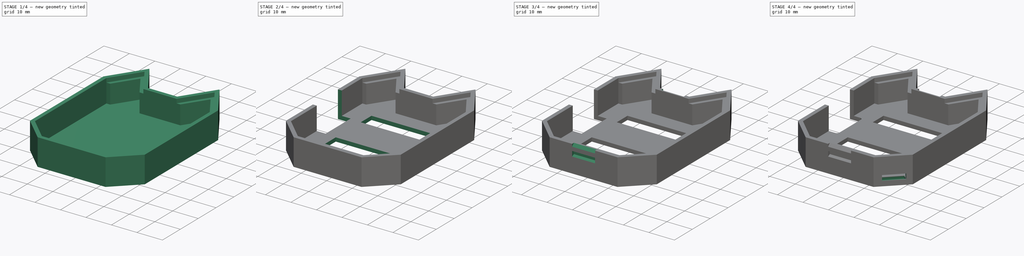
[diagram: build sequence overview — one tinted view per stage of 4, left to right]
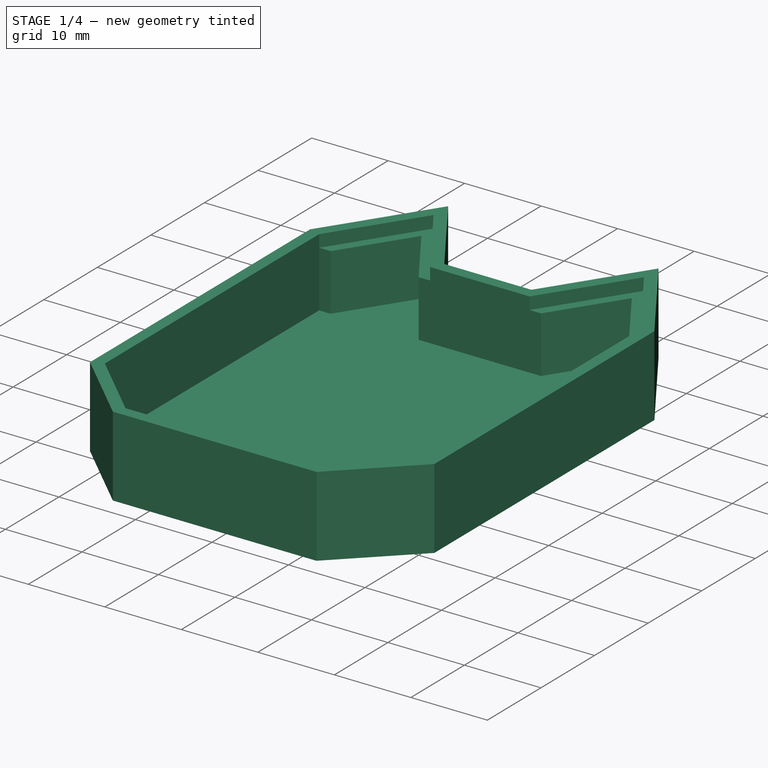
[diagram: stage 1 of 4 — iso view after this stage's code; geometry added in this stage tinted green]
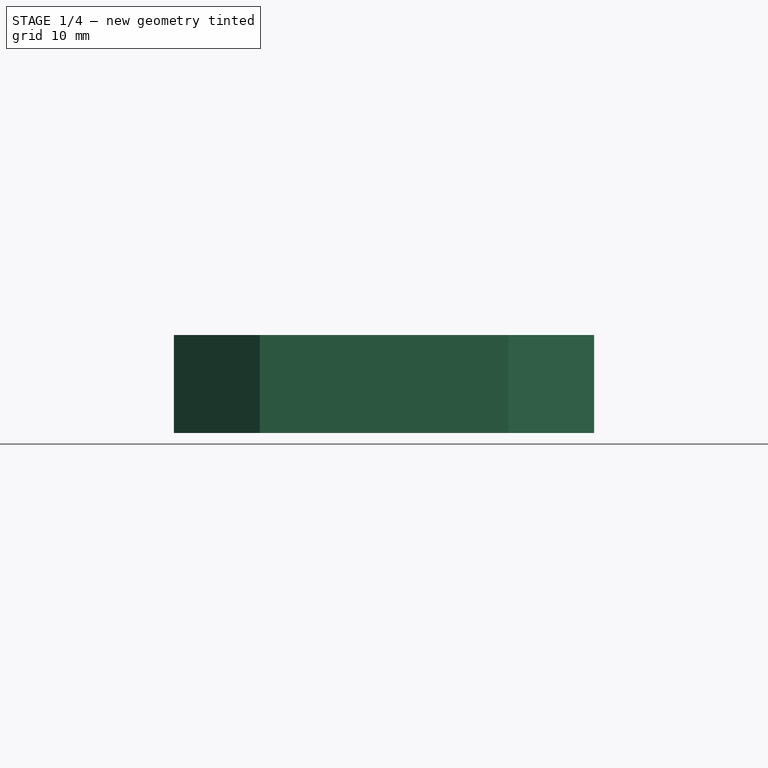
[diagram: stage 1 of 4 — front view after this stage's code; geometry added in this stage tinted green]
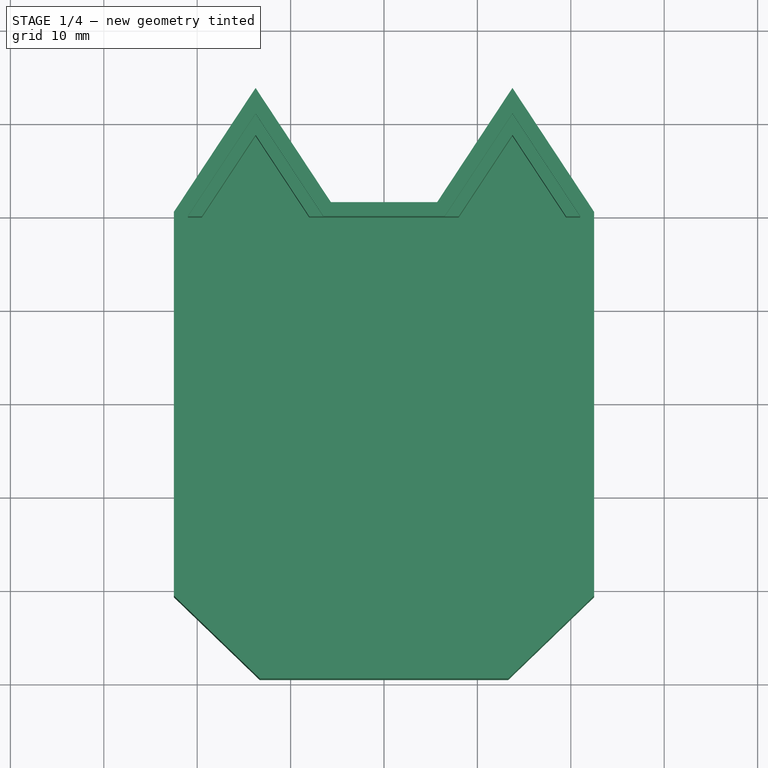
[diagram: stage 1 of 4 — top view after this stage's code; geometry added in this stage tinted green]
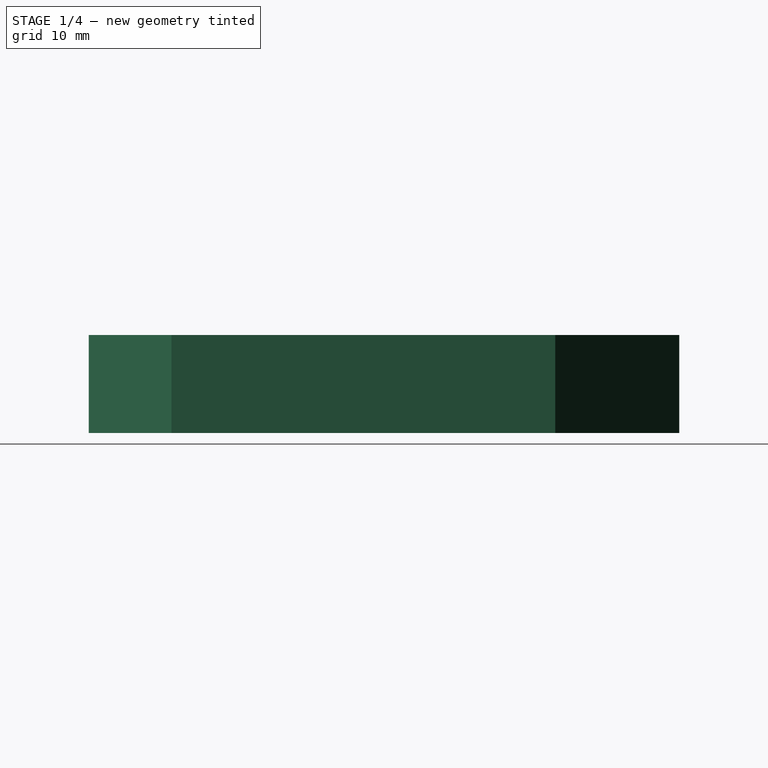
[diagram: stage 1 of 4 — right view after this stage's code; geometry added in this stage tinted green]
FCSTD DOCUMENT  (FreeCAD 0.19R24366 (Git))
Label: Slim-Mod
License: All rights reserved
LicenseURL: http://en.wikipedia.org/wiki/All_rights_reserved
objects: Sketcher::SketchObject×13, Part::Feature×9, App::Part×9, PartDesign::Pocket×8, PartDesign::Pad×3, PartDesign::Plane×2, PartDesign::Groove×1, PartDesign::Fillet×1, PartDesign::Body×1
note: 51 computed .brp shape members not serialized (recipe doc carries the construction recipe); baked Part::Feature solids carry a one-line shape summary decoded from their .brp

FEATURE [Sketcher::SketchObject] Sketch
  FullyConstrained = false
  sketch-geometry (22):
    g0: LineSegment StartX=-21 StartY=20 StartZ=0 EndX=-13.75 EndY=31 EndZ=0
    g1: LineSegment StartX=-13.75 StartY=31 StartZ=0 EndX=-6.5 EndY=20 EndZ=0
    g2: LineSegment StartX=-6.5 StartY=20 StartZ=0 EndX=6.5 EndY=20 EndZ=0
    g3: LineSegment StartX=6.5 StartY=20 StartZ=0 EndX=13.75 EndY=31 EndZ=0
    g4: LineSegment StartX=13.75 StartY=31 StartZ=0 EndX=21 EndY=20 EndZ=0
    g5: LineSegment StartX=21 StartY=20 StartZ=0 EndX=21 EndY=-20 EndZ=0
    g6: LineSegment StartX=21 StartY=-20 StartZ=0 EndX=12.7 EndY=-28 EndZ=0
    g7: LineSegment StartX=12.7 StartY=-28 StartZ=0 EndX=-12.7 EndY=-28 EndZ=0
    g8: LineSegment StartX=-12.7 StartY=-28 StartZ=0 EndX=-21 EndY=-20 EndZ=0
    g9: LineSegment StartX=-21 StartY=-20 StartZ=0 EndX=-21 EndY=20 EndZ=0
    g10: LineSegment StartX=-22.5 StartY=20.4499 StartZ=0 EndX=-13.75 EndY=33.7257 EndZ=0
    g11: LineSegment StartX=-13.75 StartY=33.7257 StartZ=0 EndX=-5.69214 EndY=21.5 EndZ=0
    g12: LineSegment StartX=-5.69214 StartY=21.5 StartZ=0 EndX=5.69214 EndY=21.5 EndZ=0
    g13: LineSegment StartX=5.69214 StartY=21.5 StartZ=0 EndX=13.75 EndY=33.7257 EndZ=0
    g14: LineSegment StartX=13.75 StartY=33.7257 StartZ=0 EndX=22.5 EndY=20.4499 EndZ=0
    g15: LineSegment StartX=22.5 StartY=20.4499 StartZ=0 EndX=22.5 EndY=-20.6376 EndZ=0
    g16: LineSegment StartX=22.5 StartY=-20.6376 StartZ=0 EndX=13.3052 EndY=-29.5 EndZ=0
    g17: LineSegment StartX=13.3052 StartY=-29.5 StartZ=0 EndX=-13.3052 EndY=-29.5 EndZ=0
    g18: LineSegment StartX=-13.3052 StartY=-29.5 StartZ=0 EndX=-22.5 EndY=-20.6376 EndZ=0
    g19: LineSegment StartX=-22.5 StartY=-20.6376 StartZ=0 EndX=-22.5 EndY=20.4499 EndZ=0
    g20: LineSegment StartX=-13.741 StartY=-29.08 StartZ=0 EndX=-12.7 EndY=-28 EndZ=0
    g21: LineSegment StartX=-13.75 StartY=31 StartZ=0 EndX=-12.4976 EndY=31.8255 EndZ=0
  constraints (60):
    c: Coincident(g0,g1)
    c: Coincident(g1,g2)
    c: Coincident(g2,g3)
    c: Coincident(g3,g4)
    c: Coincident(g4,g5)
    c: Vertical(g5)
    c: Coincident(g5,g6)
    c: Coincident(g6,g7)
    c: Coincident(g7,g8)
    c: Coincident(g8,g9)
    c: Coincident(g9,g0)
    c: DistanceY(g9,g9) = 40
    c: DistanceY(g7,g0) = 59
    c: DistanceY(g6,g5) = 8
    c: DistanceX(g2,g2) = 13
    c: DistanceX(g6,g5) = 8.3
    c: Equal(g5,g9)
    c: Equal(g0,g1)
    c: Equal(g1,g3)
    c: Equal(g3,g4)
    c: Symmetric(g2,g1,g-2)
    c: Symmetric(g7,g6,g-2)
    c: Symmetric(g0,g4,g-2)
    c: Horizontal(g2,g4)
    c: DistanceX(g8,g5) = 42
    c: Symmetric(g0,g8,g-1)
    c: Coincident(g10,g11)
    c: Coincident(g11,g12)
    c: Coincident(g12,g13)
    c: Coincident(g13,g14)
    c: Coincident(g14,g15)
    c: Coincident(g15,g16)
    c: Coincident(g16,g17)
    c: Coincident(g17,g18)
    c: Coincident(g18,g19)
    c: Coincident(g19,g10)
    c: Parallel(g10,g0)
    c: Vertical(g19)
    c: Parallel(g4,g14)
    c: Vertical(g15)
    c: Parallel(g18,g8)
    c: Parallel(g6,g16)
    c: Symmetric(g11,g12,g-2)
    c: Symmetric(g17,g16,g-2)
    c: Equal(g19,g15)
    c: Equal(g16,g18)
    c: DistanceX(g18,g8) = 1.5
    c: DistanceY(g17,g7) = 1.5
    c: Perpendicular(g18,g20)
    c: PointOnObject(g20,g18)
    c: Distance(g20) = 1.5
    c: Coincident(g20,g7)
    c: PointOnObject(g21,g11)
    c: Perpendicular(g1,g21)
    c: Distance(g21) = 1.5
    c: Horizontal(g13,g10)
    c: Vertical(g10,g0)
    c: DistanceY(g1,g11) = 1.5
    c: Parallel(g1,g11)
    c: Coincident(g21,g0)
FEATURE [PartDesign::Pad] Pad
  AllowMultiFace = false
  Direction = (1,1,1)
  Length = 10.5
  Length2 = 100
  Profile = -> Sketch
  Type = 0
FEATURE [Sketcher::SketchObject] CopySketch001
  FullyConstrained = true
  MapMode = 5
  Placement = pos=(0,0,10.5) rot=(0,0,1;0rad)
  Support = -> [Pad]
  sketch-geometry (10):
    g0: LineSegment StartX=-21 StartY=20 StartZ=0 EndX=-13.75 EndY=31 EndZ=0
    g1: LineSegment StartX=-13.75 StartY=31 StartZ=0 EndX=-6.5 EndY=20 EndZ=0
    g2: LineSegment StartX=-6.5 StartY=20 StartZ=0 EndX=6.5 EndY=20 EndZ=0
    g3: LineSegment StartX=6.5 StartY=20 StartZ=0 EndX=13.75 EndY=31 EndZ=0
    g4: LineSegment StartX=13.75 StartY=31 StartZ=0 EndX=21 EndY=20 EndZ=0
    g5: LineSegment StartX=21 StartY=20 StartZ=0 EndX=21 EndY=-20 EndZ=0
    g6: LineSegment StartX=21 StartY=-20 StartZ=0 EndX=12.7 EndY=-28 EndZ=0
    g7: LineSegment StartX=12.7 StartY=-28 StartZ=0 EndX=-12.7 EndY=-28 EndZ=0
    g8: LineSegment StartX=-12.7 StartY=-28 StartZ=0 EndX=-21 EndY=-20 EndZ=0
    g9: LineSegment StartX=-21 StartY=-20 StartZ=0 EndX=-21 EndY=20 EndZ=0
  constraints (26):
    c: Coincident(g0,g1)
    c: Coincident(g1,g2)
    c: Coincident(g2,g3)
    c: Coincident(g3,g4)
    c: Coincident(g4,g5)
    c: Vertical(g5)
    c: Coincident(g5,g6)
    c: Coincident(g6,g7)
    c: Coincident(g7,g8)
    c: Coincident(g8,g9)
    c: Coincident(g9,g0)
    c: DistanceY(g9,g9) = 40
    c: DistanceY(g7,g0) = 59
    c: DistanceY(g6,g5) = 8
    c: DistanceX(g2,g2) = 13
    c: DistanceX(g6,g5) = 8.3
    c: Equal(g5,g9)
    c: Equal(g0,g1)
    c: Equal(g1,g3)
    c: Equal(g3,g4)
    c: Symmetric(g2,g1,g-2)
    c: Symmetric(g7,g6,g-2)
    c: Symmetric(g0,g4,g-2)
    c: Horizontal(g2,g4)
    c: DistanceX(g8,g5) = 42
    c: Symmetric(g0,g8,g-1)
FEATURE [PartDesign::Pocket] Pocket
  AllowMultiFace = false
  BaseFeature = -> Pad
  Length = 9
  Length2 = 100
  Profile = -> CopySketch001
  Type = 0
FEATURE [Sketcher::SketchObject] Sketch001
  ExternalGeometry = -> [Pocket]
  FullyConstrained = true
  MapMode = 5
  Placement = pos=(0,0,1.5) rot=(0,0,1;0rad)
  Support = -> [Pocket]
  sketch-geometry (16):
    g0: LineSegment StartX=-14.2562 StartY=-26.5 StartZ=0 EndX=14.2562 EndY=-26.5 EndZ=0
    g1: LineSegment StartX=14.2562 StartY=-26.5 StartZ=0 EndX=12.7 EndY=-28 EndZ=0
    g2: LineSegment StartX=12.7 StartY=-28 StartZ=0 EndX=-12.7 EndY=-28 EndZ=0
    g3: LineSegment StartX=-12.7 StartY=-28 StartZ=0 EndX=-14.2562 EndY=-26.5 EndZ=0
    g4: LineSegment StartX=-21 StartY=20 StartZ=0 EndX=-13.75 EndY=31 EndZ=0
    g5: LineSegment StartX=-13.75 StartY=31 StartZ=0 EndX=-6.5 EndY=20 EndZ=0
    g6: LineSegment StartX=-6.5 StartY=20 StartZ=0 EndX=-8 EndY=20 EndZ=0
    g7: LineSegment StartX=-8 StartY=20 StartZ=0 EndX=-13.75 EndY=28.7241 EndZ=0
    g8: LineSegment StartX=-13.75 StartY=28.7241 StartZ=0 EndX=-19.5 EndY=20 EndZ=0
    g9: LineSegment StartX=-19.5 StartY=20 StartZ=0 EndX=-21 EndY=20 EndZ=0
    g10: LineSegment StartX=6.5 StartY=20 StartZ=0 EndX=13.75 EndY=31 EndZ=0
    g11: LineSegment StartX=13.75 StartY=31 StartZ=0 EndX=21 EndY=20 EndZ=0
    g12: LineSegment StartX=21 StartY=20 StartZ=0 EndX=19.5 EndY=20 EndZ=0
    g13: LineSegment StartX=19.5 StartY=20 StartZ=0 EndX=13.75 EndY=28.7241 EndZ=0
    g14: LineSegment StartX=13.75 StartY=28.7241 StartZ=0 EndX=8 EndY=20 EndZ=0
    g15: LineSegment StartX=8 StartY=20 StartZ=0 EndX=6.5 EndY=20 EndZ=0
  constraints (42):
    c: Coincident(g0,g1)
    c: Coincident(g1,g2)
    c: Coincident(g2,g3)
    c: Coincident(g3,g0)
    c: Symmetric(g2,g1,g-2)
    c: Coincident(g1,g-4)
    c: Symmetric(g0,g0,g-2)
    c: PointOnObject(g0,g-4)
    c: DistanceY(g1,g1) = 1.5
    c: Coincident(g4,g5)
    c: Coincident(g5,g6)
    c: Horizontal(g6)
    c: Coincident(g6,g7)
    c: Coincident(g7,g8)
    c: Coincident(g8,g9)
    c: Coincident(g9,g4)
    c: Coincident(g10,g11)
    c: Coincident(g11,g12)
    c: Coincident(g12,g13)
    c: Coincident(g13,g14)
    c: Coincident(g14,g15)
    c: Coincident(g15,g10)
    c: Horizontal(g9)
    c: Horizontal(g15)
    c: Horizontal(g12)
    c: Equal(g8,g7)
    c: Equal(g7,g13)
    c: Equal(g13,g14)
    c: Equal(g11,g10)
    c: Equal(g10,g5)
    c: Equal(g5,g4)
    c: Horizontal(g8,g5)
    c: Horizontal(g14,g12)
    c: Equal(g9,g6)
    c: Equal(g6,g15)
    c: Equal(g15,g12)
    c: Parallel(g5,g7)
    c: Parallel(g13,g11)
    c: Coincident(g4,g-5)
    c: DistanceX(g15,g15) = 1.5
    c: Symmetric(g5,g10,g-2)
    c: Coincident(g-5,g5)
FEATURE [PartDesign::Pad] Pad001
  AllowMultiFace = false
  BaseFeature = -> Pocket
  Direction = (1,1,1)
  Length = 7.4
  Length2 = 100
  Profile = -> Sketch001
  Type = 0
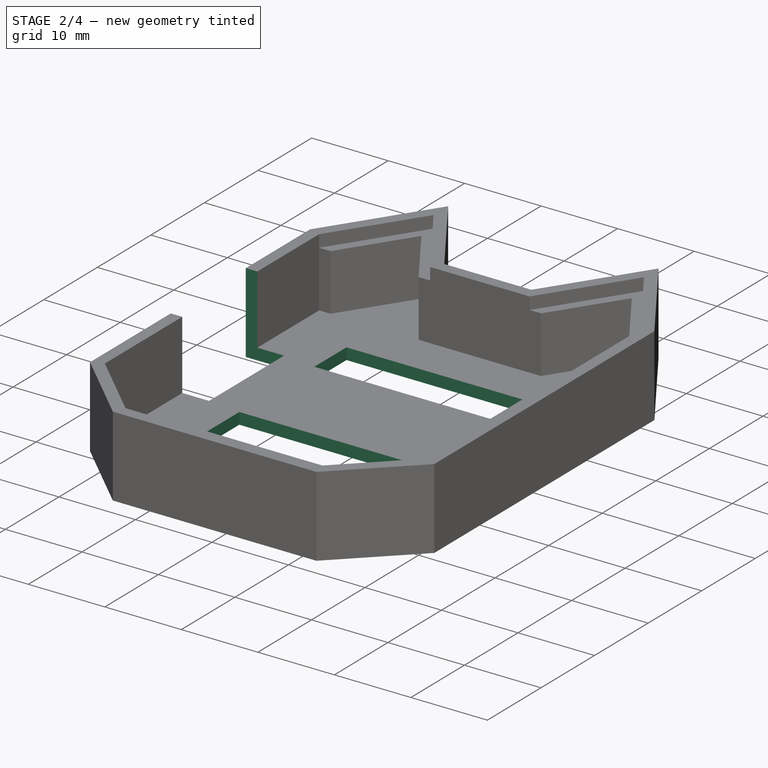
[diagram: stage 2 of 4 — iso view after this stage's code; geometry added in this stage tinted green]
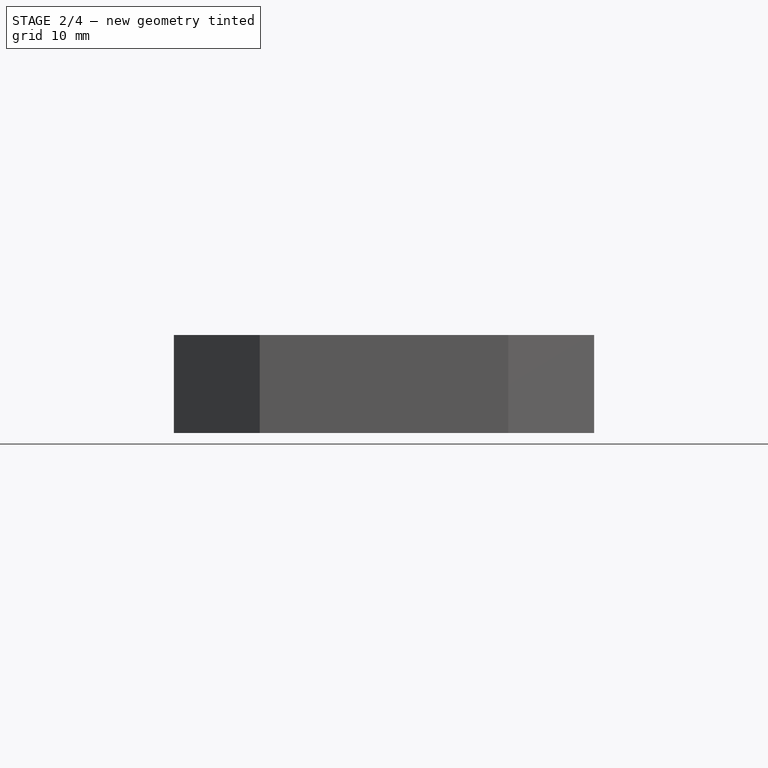
[diagram: stage 2 of 4 — front view after this stage's code; geometry added in this stage tinted green]
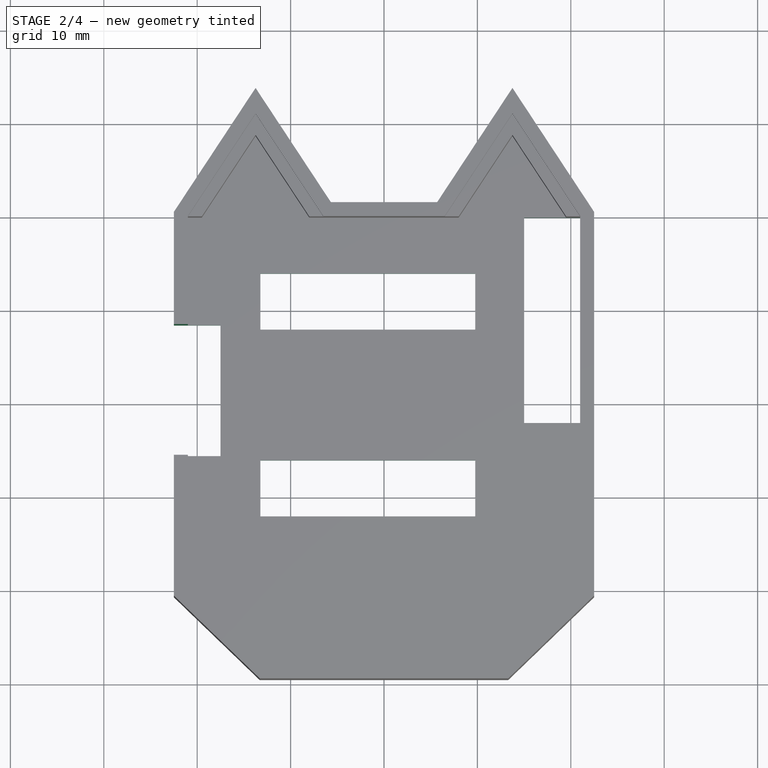
[diagram: stage 2 of 4 — top view after this stage's code; geometry added in this stage tinted green]
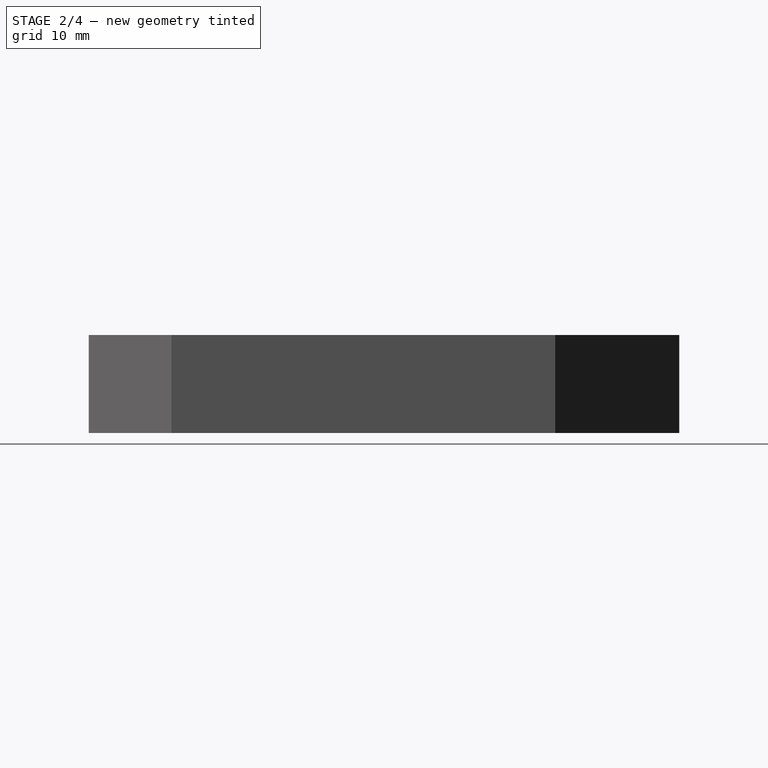
[diagram: stage 2 of 4 — right view after this stage's code; geometry added in this stage tinted green]
FEATURE [Sketcher::SketchObject] Sketch007
  FullyConstrained = true
  MapMode = 5
  Placement = pos=(0,0,0) rot=(1,0,0;3.14159rad)
  sketch-geometry (10):
    g0: LineSegment StartX=-13.23 StartY=12 StartZ=0 EndX=9.77 EndY=12 EndZ=0
    g1: LineSegment StartX=9.77 StartY=12 StartZ=0 EndX=9.77 EndY=6 EndZ=0
    g2: LineSegment StartX=9.77 StartY=6 StartZ=0 EndX=-13.23 EndY=6 EndZ=0
    g3: LineSegment StartX=-13.23 StartY=6 StartZ=0 EndX=-13.23 EndY=12 EndZ=0
    g4: LineSegment StartX=-13.23 StartY=-8 StartZ=0 EndX=9.77 EndY=-8 EndZ=0
    g5: LineSegment StartX=9.77 StartY=-8 StartZ=0 EndX=9.77 EndY=-14 EndZ=0
    g6: LineSegment StartX=9.77 StartY=-14 StartZ=0 EndX=-13.23 EndY=-14 EndZ=0
    g7: LineSegment StartX=-13.23 StartY=-14 StartZ=0 EndX=-13.23 EndY=-8 EndZ=0
    g8: GeomPoint X=9.77 Y=9 Z=0
    g9: GeomPoint X=9.77 Y=-11 Z=0
  constraints (26):
    c: Coincident(g0,g1)
    c: Coincident(g1,g2)
    c: Coincident(g2,g3)
    c: Coincident(g3,g0)
    c: Horizontal(g0)
    c: Horizontal(g2)
    c: Vertical(g1)
    c: Vertical(g3)
    c: Coincident(g4,g5)
    c: Coincident(g5,g6)
    c: Coincident(g6,g7)
    c: Coincident(g7,g4)
    c: Horizontal(g4)
    c: Horizontal(g6)
    c: Vertical(g5)
    c: Vertical(g7)
    c: Equal(g4,g2)
    c: Equal(g1,g5)
    c: DistanceX(g4,g4) = 23
    c: Vertical(g4,g1)
    c: DistanceY(g5,g5) = 6
    c: Symmetric(g4,g5,g9)
    c: Symmetric(g1,g0,g8)
    c: DistanceY(g9,g8) = 20
    c: DistanceY(g-1,g1) = 6
    c: DistanceX(g2,g-1) = 13.23
FEATURE [Part::Feature] Part__Feature  label="COMPOUND"
  shape: bbox 35.4 x 33.5 x 12.04 mm, 319 faces, 8 solids (baked)
FEATURE [App::Part] SH1106_128x64  label="SH1106-128x64"
  Group = -> [Part__Feature]
  Origin = -> Origin001
  Placement = pos=(-15.2,-13.025,5.65) rot=(0,0,1;0rad)
FEATURE [Part::Feature] Part__Feature001  label="COMPOUND001"
  shape: bbox 9 x 3.5 x 2 mm, 79 faces, 3 solids (baked)
FEATURE [App::Part] SW_SPST_FSMSM
  Group = -> [Part__Feature001]
  Origin = -> Origin002
  Placement = pos=(11.8745,-21.314,1.65) rot=(0,0,1;0rad)
FEATURE [Part::Feature] Part__Feature002  label="COMPOUND002"
  shape: bbox 25.8 x 14.42 x 34.45 mm, 2111 faces, 46 solids (baked)
FEATURE [App::Part] WEMOS_D1_mini  label="WEMOS-D1-mini"
  Group = -> [Part__Feature002]
  Origin = -> Origin003
  Placement = pos=(-19.786,14.024,-4.05) rot=(0.57735,0.57735,-0.57735;4.18879rad)
FEATURE [Part::Feature] Part__Feature003  label="COMPOUND003"
  shape: bbox 2.54 x 17.64 x 17.78 mm, 248 faces, 8 solids (baked)
FEATURE [App::Part] _x7  label="1x7"
  Group = -> [Part__Feature003]
  Origin = -> Origin004
  Placement = pos=(20.6375,19.05,-10.75) rot=(0,0.707107,-0.707107;3.14159rad)
FEATURE [Part::Feature] Part__Feature004  label="SOLID"
  shape: bbox 4.95 x 5.35 x 1.7 mm, 58 faces (baked)
FEATURE [App::Part] WS21812B_NeoPixel  label="WS21812B-NeoPixel"
  Group = -> [Part__Feature004]
  Origin = -> Origin005
  Placement = pos=(-12.1285,-21.3995,1.65) rot=(0,0,1;1.5708rad)
FEATURE [Part::Feature] Part__Feature005  label="COMPOUND004"
  shape: bbox 9 x 3.5 x 2 mm, 79 faces, 3 solids (baked)
FEATURE [App::Part] SW_SPST_FSMSM001
  Group = -> [Part__Feature005]
  Origin = -> Origin006
  Placement = pos=(-0.635,-21.314,1.65) rot=(0,0,1;0rad)
FEATURE [Part::Feature] Part__Feature006  label="COMPOUND005"
  shape: bbox 9 x 3.5 x 2 mm, 79 faces, 3 solids (baked)
FEATURE [App::Part] SW_SPST_FSMSM002
  Group = -> [Part__Feature006]
  Origin = -> Origin007
  Placement = pos=(5.6515,-25.146,1.65) rot=(0,0,1;0rad)
FEATURE [Part::Feature] Part__Feature007  label="COMPOUND006"
  shape: bbox 9 x 3.5 x 2 mm, 79 faces, 3 solids (baked)
FEATURE [App::Part] SW_SPST_FSMSM003
  Group = -> [Part__Feature007]
  Origin = -> Origin008
  Placement = pos=(5.6515,-17.4625,1.65) rot=(0,0,1;0rad)
FEATURE [Part::Feature] Part__Feature008  label="COMPOUND007"
  shape: bbox 42 x 59 x 1.6 mm, 41 faces (baked)
FEATURE [App::Part] Open_CASCADE_STEP_translator_7_3_1  label="Open CASCADE STEP translator 7.3 1"
  Group = -> [SH1106_128x64,SW_SPST_FSMSM,WEMOS_D1_mini,_x7,WS21812B_NeoPixel,SW_SPST_FSMSM001,SW_SPST_FSMSM002,SW_SPST_FSMSM003,Part__Feature008]
  Origin = -> Origin009
  Placement = pos=(0,0,10) rot=(0,0,1;0rad)
FEATURE [Sketcher::SketchObject] Sketch006
  ExternalGeometry = -> [Pad001]
  FullyConstrained = true
  MapMode = 5
  Placement = pos=(-22.5,0,0) rot=(0.57735,-0.57735,-0.57735;2.0944rad)
  sketch-geometry (5):
    g0: LineSegment StartX=-1.44986 StartY=0 StartZ=0 EndX=-1.44986 EndY=10.5 EndZ=0
    g1: LineSegment StartX=-8.44986 StartY=10.5 StartZ=0 EndX=5.55014 EndY=10.5 EndZ=0
    g2: LineSegment StartX=5.55014 StartY=10.5 StartZ=0 EndX=5.55014 EndY=0 EndZ=0
    g3: LineSegment StartX=5.55014 StartY=0 StartZ=0 EndX=-8.44986 EndY=0 EndZ=0
    g4: LineSegment StartX=-8.44986 StartY=0 StartZ=0 EndX=-8.44986 EndY=10.5 EndZ=0
  constraints (15):
    c: PointOnObject(g0,g-1)
    c: Vertical(g0)
    c: Coincident(g1,g2)
    c: Coincident(g4,g1)
    c: Horizontal(g1)
    c: Horizontal(g3)
    c: Vertical(g2)
    c: Vertical(g4)
    c: Symmetric(g1,g1,g0)
    c: PointOnObject(g0,g-3)
    c: DistanceX(g1,g1) = 14
    c: PointOnObject(g3,g-1)
    c: Coincident(g3,g2)
    c: Coincident(g4,g3)
    c: DistanceX(g-3,g1) = 12
FEATURE [PartDesign::Pocket] Pocket001
  BaseFeature = -> Pad001
  Length = 5
  Length2 = 100
  Profile = -> Sketch006
  Type = 0
FEATURE [Sketcher::SketchObject] Sketch008
  ExternalGeometry = -> [Pocket001]
  FullyConstrained = true
  MapMode = 5
  Placement = pos=(0,0,0) rot=(1,0,0;3.14159rad)
  sketch-geometry (4):
    g0: LineSegment StartX=21 StartY=-20 StartZ=0 EndX=15 EndY=-20 EndZ=0
    g1: LineSegment StartX=15 StartY=-20 StartZ=0 EndX=15 EndY=2 EndZ=0
    g2: LineSegment StartX=15 StartY=2 StartZ=0 EndX=21 EndY=2 EndZ=0
    g3: LineSegment StartX=21 StartY=2 StartZ=0 EndX=21 EndY=-20 EndZ=0
  constraints (12):
    c: Coincident(g0,g1)
    c: Coincident(g1,g2)
    c: Coincident(g2,g3)
    c: Coincident(g3,g0)
    c: Horizontal(g0)
    c: Horizontal(g2)
    c: Vertical(g1)
    c: Vertical(g3)
    c: DistanceY(g1,g1) = 22
    c: DistanceX(g2,g2) = 6
    c: DistanceY(g-1,g1) = 2
    c: DistanceX(g-1,g1) = 15
FEATURE [PartDesign::Pocket] Pocket002
  BaseFeature = -> Pocket001
  Length = 5
  Length2 = 100
  Profile = -> Sketch008
  Type = 0
FEATURE [PartDesign::Pocket] Pocket003
  BaseFeature = -> Pocket002
  Length = 5
  Length2 = 100
  Profile = -> Sketch007
  Type = 0
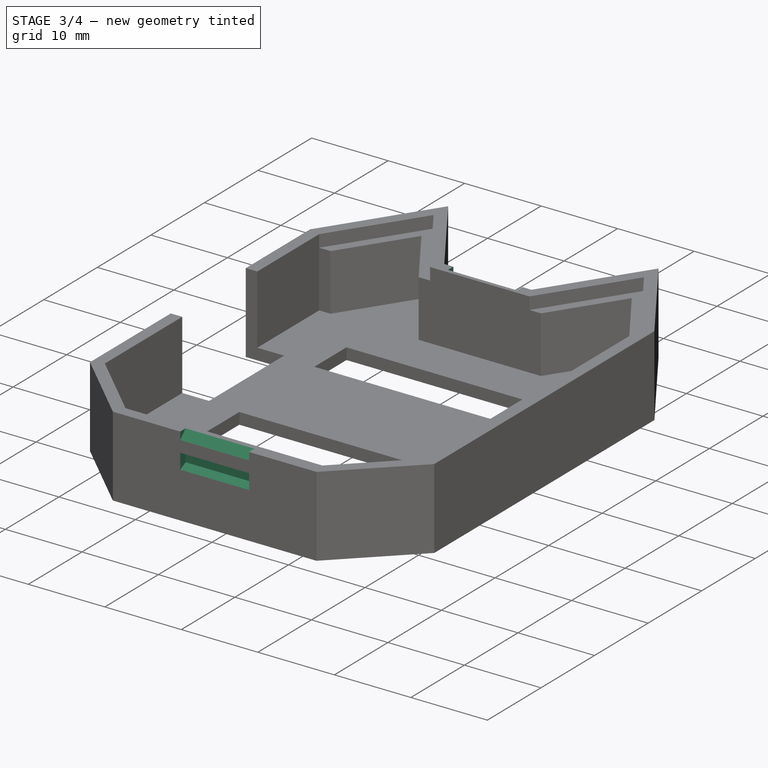
[diagram: stage 3 of 4 — iso view after this stage's code; geometry added in this stage tinted green]
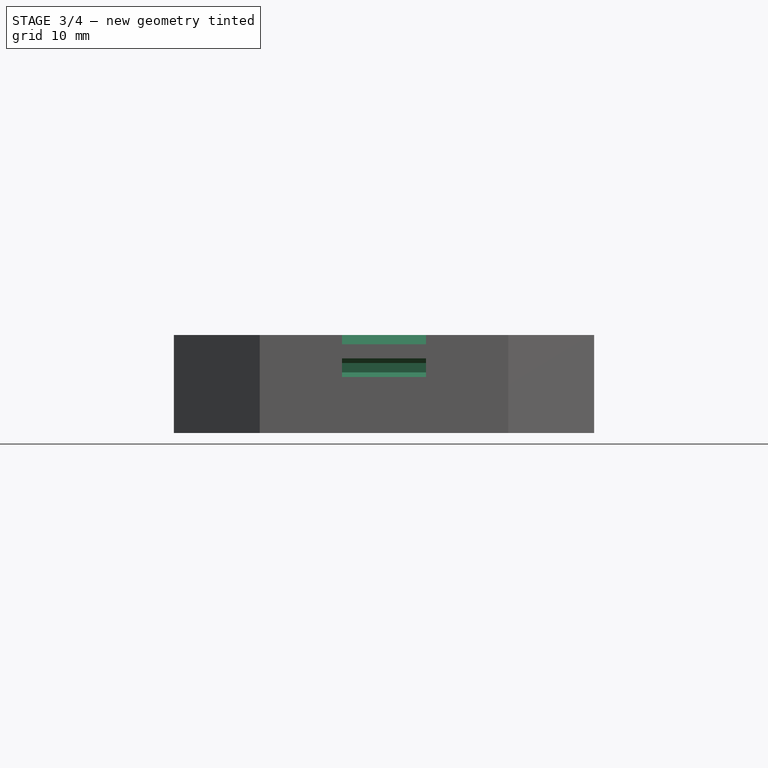
[diagram: stage 3 of 4 — front view after this stage's code; geometry added in this stage tinted green]
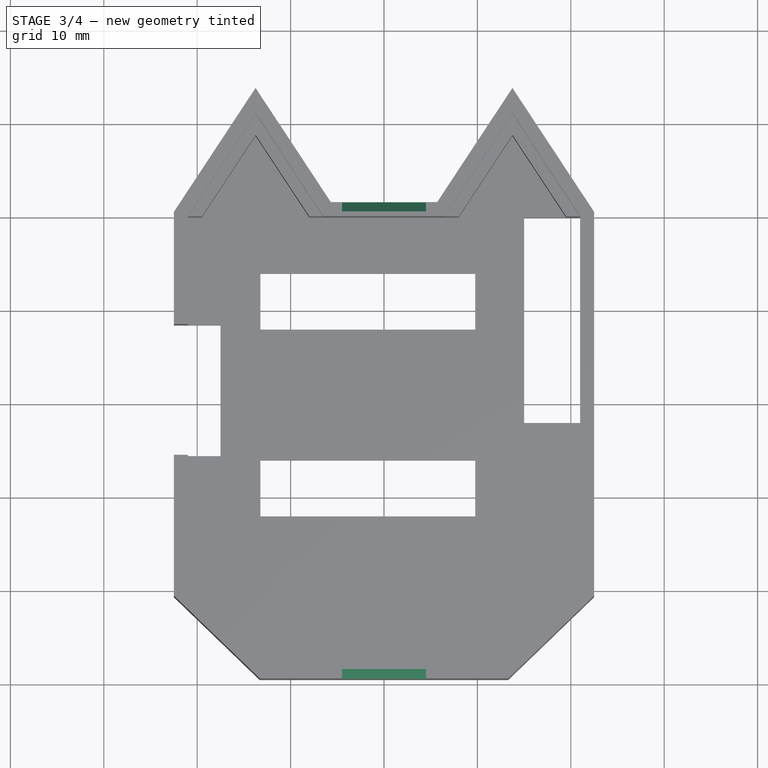
[diagram: stage 3 of 4 — top view after this stage's code; geometry added in this stage tinted green]
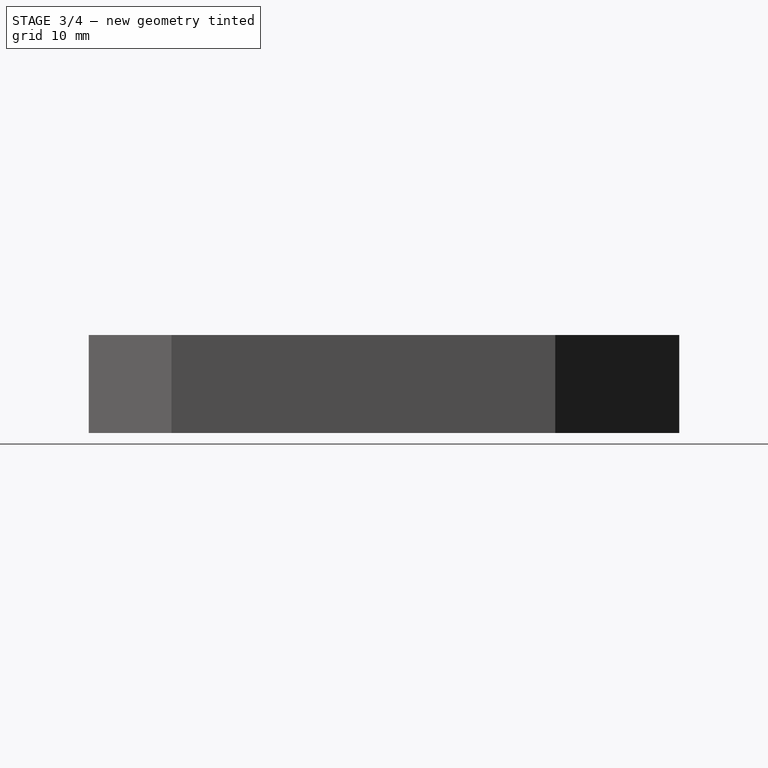
[diagram: stage 3 of 4 — right view after this stage's code; geometry added in this stage tinted green]
FEATURE [PartDesign::Plane] DatumPlane
  Length = 74.4708
  MapMode = 45
  Placement = pos=(1.3e-15,20,10.5) rot=(0.57735,0.57735,0.57735;2.0944rad)
  ResizeMode = 0
  Support = -> [Pocket003]
  Width = 61.2451
FEATURE [Sketcher::SketchObject] Sketch010
  ExternalGeometry = -> [Pocket003]
  FullyConstrained = true
  MapMode = 5
  Placement = pos=(1.3e-15,20,10.5) rot=(0.57735,0.57735,0.57735;2.0944rad)
  Support = -> [DatumPlane]
  sketch-geometry (5):
    g0: LineSegment StartX=0.5 StartY=-3 StartZ=0 EndX=0.5 EndY=-4 EndZ=0
    g1: LineSegment StartX=0.5 StartY=-4 StartZ=0 EndX=1.5 EndY=-4.5 EndZ=0
    g2: LineSegment StartX=1.5 StartY=-4.5 StartZ=0 EndX=1.5 EndY=-2.5 EndZ=0
    g3: LineSegment StartX=1.5 StartY=-2.5 StartZ=0 EndX=0.5 EndY=-3 EndZ=0
    g4: LineSegment StartX=0.5 StartY=-3.5 StartZ=0 EndX=1.5 EndY=-3.5 EndZ=0
  constraints (14):
    c: Coincident(g0,g1)
    c: Coincident(g1,g2)
    c: Coincident(g2,g3)
    c: Coincident(g3,g0)
    c: Horizontal(g4)
    c: Symmetric(g2,g1,g4)
    c: Symmetric(g0,g0,g4)
    c: DistanceY(g2,g2) = 2
    c: Vertical(g2)
    c: DistanceY(g0,g0) = 1
    c: Vertical(g0)
    c: DistanceX(g4,g4) = 1
    c: DistanceY(g2,g-1) = 2.5
    c: Vertical(g-3,g2)
FEATURE [PartDesign::Pocket] Pocket005
  BaseFeature = -> Pocket003
  Length = 9
  Length2 = 100
  Midplane = true
  Profile = -> Sketch010
  Type = 0
FEATURE [Sketcher::SketchObject] Sketch011
  ExternalGeometry = -> [Pocket005]
  FullyConstrained = true
  MapMode = 5
  Placement = pos=(1.3e-15,20,10.5) rot=(0.57735,0.57735,0.57735;2.0944rad)
  Support = -> [DatumPlane]
  sketch-geometry (3):
    g0: LineSegment StartX=0.5 StartY=0 StartZ=0 EndX=1.5 EndY=0 EndZ=0
    g1: LineSegment StartX=1.5 StartY=0 StartZ=0 EndX=1.5 EndY=-1 EndZ=0
    g2: LineSegment StartX=1.5 StartY=-1 StartZ=0 EndX=0.5 EndY=0 EndZ=0
  constraints (8):
    c: PointOnObject(g0,g-1)
    c: Coincident(g0,g1)
    c: Vertical(g1)
    c: Coincident(g1,g2)
    c: Coincident(g2,g0)
    c: Equal(g1,g0)
    c: DistanceX(g0,g0) = 1
    c: Coincident(g0,g-3)
FEATURE [PartDesign::Pocket] Pocket006
  BaseFeature = -> Pocket005
  Length = 9
  Length2 = 100
  Midplane = true
  Profile = -> Sketch011
  Type = 0
FEATURE [Sketcher::SketchObject] Sketch013
  ExternalGeometry = -> [Pocket006]
  FullyConstrained = true
  MapMode = 5
  Placement = pos=(1.3e-15,20,10.5) rot=(0.57735,0.57735,0.57735;2.0944rad)
  Support = -> [DatumPlane]
  sketch-geometry (5):
    g0: LineSegment StartX=-49.5 StartY=-2.5 StartZ=0 EndX=-49.5 EndY=-4.5 EndZ=0
    g1: LineSegment StartX=-49.5 StartY=-4.5 StartZ=0 EndX=-48.5 EndY=-4 EndZ=0
    g2: LineSegment StartX=-48.5 StartY=-4 StartZ=0 EndX=-48.5 EndY=-3 EndZ=0
    g3: LineSegment StartX=-48.5 StartY=-3 StartZ=0 EndX=-49.5 EndY=-2.5 EndZ=0
    g4: LineSegment StartX=-49.5 StartY=-3.5 StartZ=0 EndX=-48.5 EndY=-3.5 EndZ=0
  constraints (14):
    c: Coincident(g0,g1)
    c: Coincident(g1,g2)
    c: Coincident(g2,g3)
    c: Coincident(g3,g0)
    c: Symmetric(g0,g0,g4)
    c: Symmetric(g1,g2,g4)
    c: Horizontal(g4)
    c: DistanceY(g2,g2) = 1
    c: DistanceY(g0,g0) = 2
    c: Vertical(g0)
    c: Vertical(g2)
    c: DistanceY(g0,g-1) = 2.5
    c: DistanceX(g4,g4) = 1
    c: Vertical(g0,g-3)
FEATURE [PartDesign::Pocket] Pocket008
  BaseFeature = -> Pocket006
  Length = 9
  Length2 = 100
  Midplane = true
  Profile = -> Sketch013
  Type = 0
FEATURE [Sketcher::SketchObject] Sketch014
  FullyConstrained = true
  MapMode = 5
  Placement = pos=(22.5,0,0) rot=(0.57735,0.57735,0.57735;2.0944rad)
  Support = -> [Pocket008]
FEATURE [Sketcher::SketchObject] Sketch015
  ExternalGeometry = -> [Pocket008]
  FullyConstrained = true
  MapMode = 5
  Placement = pos=(1.3e-15,20,10.5) rot=(0.57735,0.57735,0.57735;2.0944rad)
  Support = -> [DatumPlane]
  sketch-geometry (3):
    g0: LineSegment StartX=-49.5 StartY=0 StartZ=0 EndX=-49.5 EndY=-1 EndZ=0
    g1: LineSegment StartX=-49.5 StartY=-1 StartZ=0 EndX=-48.5 EndY=0 EndZ=0
    g2: LineSegment StartX=-48.5 StartY=0 StartZ=0 EndX=-49.5 EndY=0 EndZ=0
  constraints (8):
    c: Coincident(g0,g1)
    c: Coincident(g1,g2)
    c: Coincident(g2,g0)
    c: Horizontal(g2)
    c: Vertical(g0)
    c: Equal(g0,g2)
    c: DistanceX(g2,g2) = 1
    c: Coincident(g-3,g0)
FEATURE [PartDesign::Pocket] Pocket009
  BaseFeature = -> Pocket008
  Length = 9
  Length2 = 100
  Midplane = true
  Profile = -> Sketch015
  Type = 0
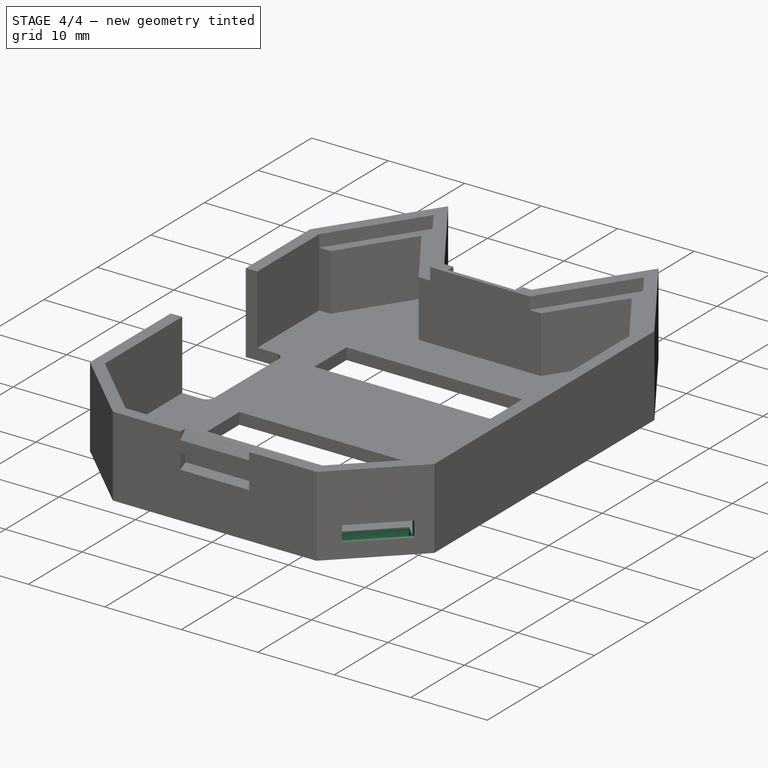
[diagram: stage 4 of 4 — iso view after this stage's code; geometry added in this stage tinted green]
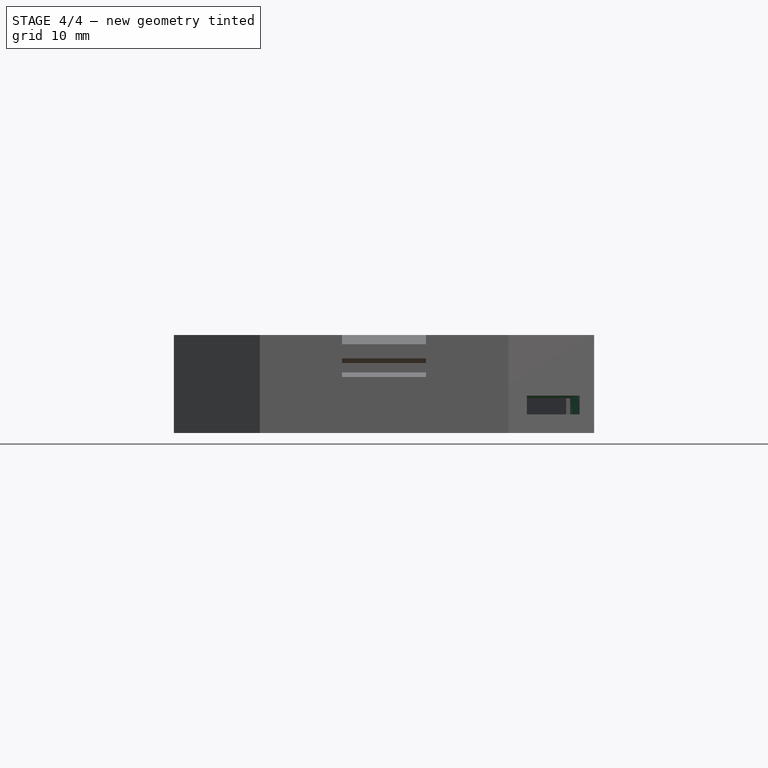
[diagram: stage 4 of 4 — front view after this stage's code; geometry added in this stage tinted green]
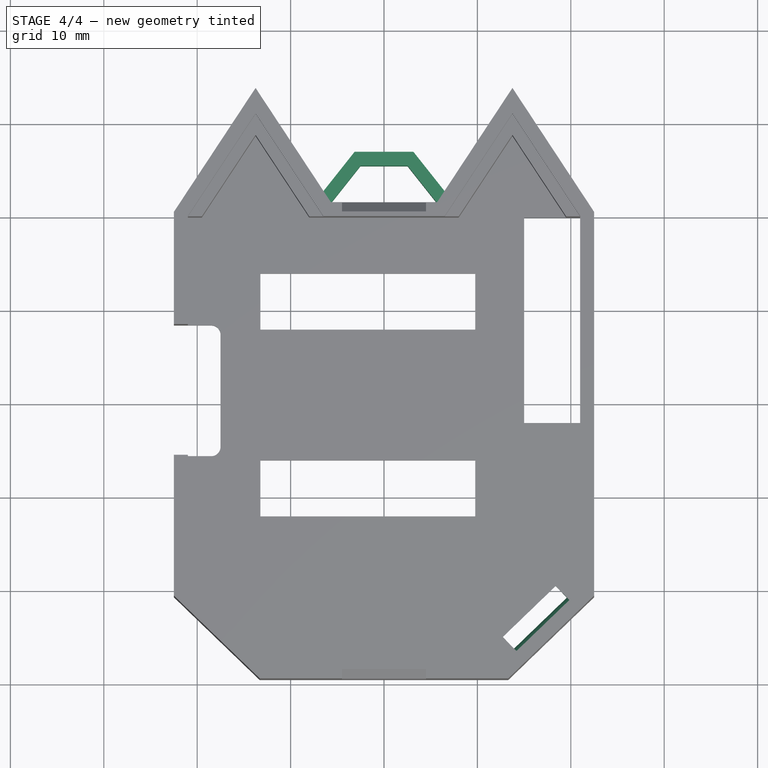
[diagram: stage 4 of 4 — top view after this stage's code; geometry added in this stage tinted green]
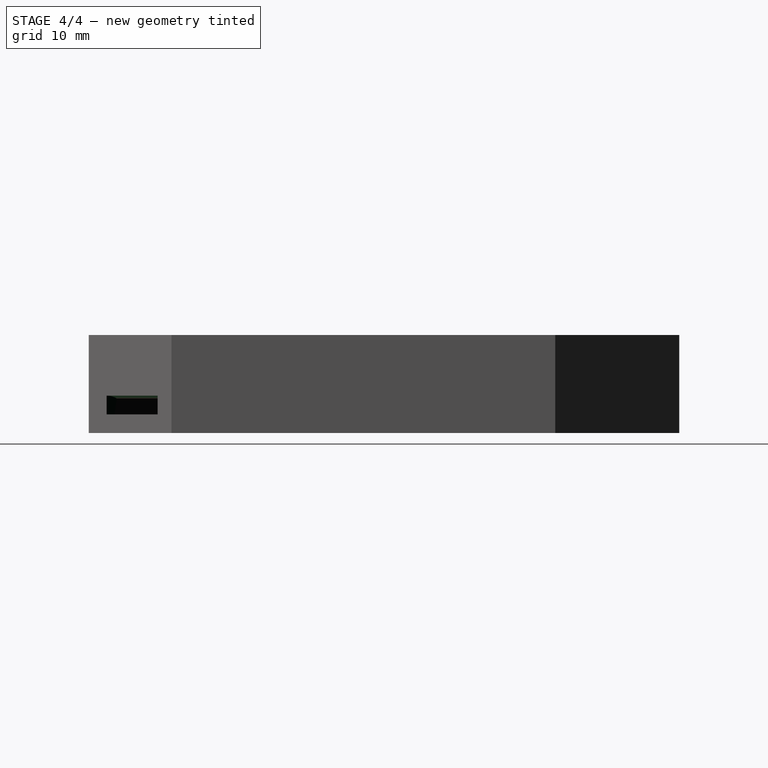
[diagram: stage 4 of 4 — right view after this stage's code; geometry added in this stage tinted green]
FEATURE [Sketcher::SketchObject] Sketch016
  ExternalGeometry = -> [Pocket009]
  FullyConstrained = true
  MapMode = 5
  Placement = pos=(21.1478,-21.9409,0) rot=(0.868554,0.350439,0.350439;1.71126rad)
  Support = -> [Pocket009]
  sketch-geometry (4):
    g0: LineSegment StartX=-8.12585 StartY=4 StartZ=0 EndX=-0.25952 EndY=4 EndZ=0
    g1: LineSegment StartX=-0.25952 StartY=4 StartZ=0 EndX=-0.25952 EndY=2 EndZ=0
    g2: LineSegment StartX=-0.25952 StartY=2 StartZ=0 EndX=-8.12585 EndY=2 EndZ=0
    g3: LineSegment StartX=-8.12585 StartY=2 StartZ=0 EndX=-8.12585 EndY=4 EndZ=0
  constraints (12):
    c: Coincident(g0,g1)
    c: Coincident(g1,g2)
    c: Coincident(g3,g0)
    c: Horizontal(g0)
    c: Horizontal(g2)
    c: Vertical(g1)
    c: Vertical(g3)
    c: DistanceY(g1,g1) = 2
    c: DistanceX(g1,g-4) = 1.5
    c: Coincident(g3,g2)
    c: PointOnObject(g2,g-3)
    c: DistanceY(g-1,g1) = 2
FEATURE [PartDesign::Groove] Groove
  Angle = 360
  Axis = (0.719999,0.693975,-1e-16)
  Base = (21.1478,-21.9409,0)
  BaseFeature = -> Pocket009
  Profile = -> Sketch016
  ReferenceAxis = -> Sketch016 [H_Axis]
  Reversed = true
FEATURE [PartDesign::Plane] DatumPlane001
  Length = 61.2451
  MapMode = 5
  Placement = pos=(0,0,0) rot=(1,0,0;3.14159rad)
  ResizeMode = 0
  Support = -> [Groove]
  Width = 74.4708
FEATURE [Sketcher::SketchObject] Sketch017
  ExternalGeometry = -> [Groove]
  FullyConstrained = true
  MapMode = 5
  Placement = pos=(0,0,0) rot=(1,0,0;3.14159rad)
  Support = -> [DatumPlane001]
  sketch-geometry (8):
    g0: LineSegment StartX=-5.69214 StartY=-21.5 StartZ=0 EndX=-2.52081 EndY=-25.5 EndZ=0
    g1: LineSegment StartX=-2.52081 StartY=-25.5 StartZ=0 EndX=2.52081 EndY=-25.5 EndZ=0
    g2: LineSegment StartX=2.52081 StartY=-25.5 StartZ=0 EndX=5.69214 EndY=-21.5 EndZ=0
    g3: LineSegment StartX=5.69214 StartY=-21.5 StartZ=0 EndX=6.51761 EndY=-22.7524 EndZ=0
    g4: LineSegment StartX=6.51761 StartY=-22.7524 StartZ=0 EndX=3.15 EndY=-27 EndZ=0
    g5: LineSegment StartX=3.15 StartY=-27 StartZ=0 EndX=-3.15 EndY=-27 EndZ=0
    g6: LineSegment StartX=-3.15 StartY=-27 StartZ=0 EndX=-6.51761 EndY=-22.7524 EndZ=0
    g7: LineSegment StartX=-6.51761 StartY=-22.7524 StartZ=0 EndX=-5.69214 EndY=-21.5 EndZ=0
  constraints (20):
    c: Coincident(g-3,g0)
    c: Coincident(g0,g1)
    c: Coincident(g1,g2)
    c: Coincident(g2,g-5)
    c: Coincident(g2,g3)
    c: PointOnObject(g3,g-5)
    c: Coincident(g3,g4)
    c: Coincident(g4,g5)
    c: Coincident(g5,g6)
    c: PointOnObject(g6,g-3)
    c: Coincident(g6,g7)
    c: Coincident(g7,g0)
    c: Symmetric(g4,g5,g-2)
    c: Parallel(g0,g6)
    c: Parallel(g4,g2)
    c: Symmetric(g0,g1,g-2)
    c: DistanceX(g5,g5) = 6.3
    c: Distance(g7) = 1.5
    c: DistanceY(g5,g0) = 1.5
    c: DistanceY(g1,g2) = 4
FEATURE [PartDesign::Pad] Pad002
  BaseFeature = -> Groove
  Direction = (1,1,1)
  Length = 4
  Length2 = 100
  Profile = -> Sketch017
  Reversed = true
  Type = 0
FEATURE [PartDesign::Fillet] Fillet
  Base = -> Pad002 [Edge73,Edge93]
  BaseFeature = -> Pad002
  Radius = 1
  SupportTransform = false
FEATURE [PartDesign::Body] Body
  Group = -> [Sketch,Pad,Pocket,Sketch001,Pad001,Sketch006,Sketch007,Sketch008,Pocket001,Pocket002,Pocket003,DatumPlane,Sketch010,Pocket005,Sketch011,Pocket006,Sketch013,Pocket008,Sketch014,Sketch015,Pocket009,Sketch016,Groove,DatumPlane001,Sketch017,Pad002,Fillet]
  Origin = -> Origin
  Tip = -> Fillet
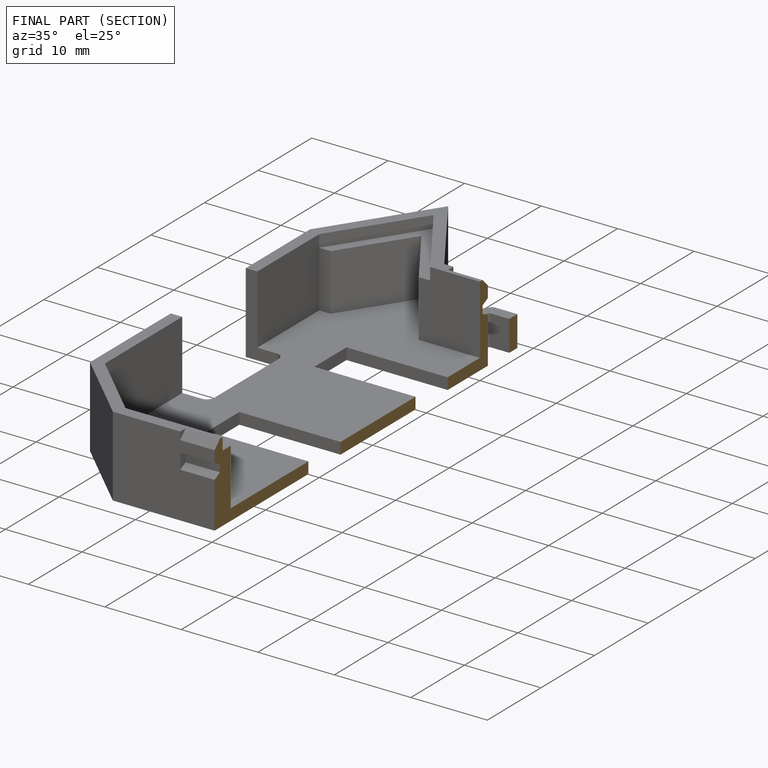
[diagram: finished part — half-section view (interior)]
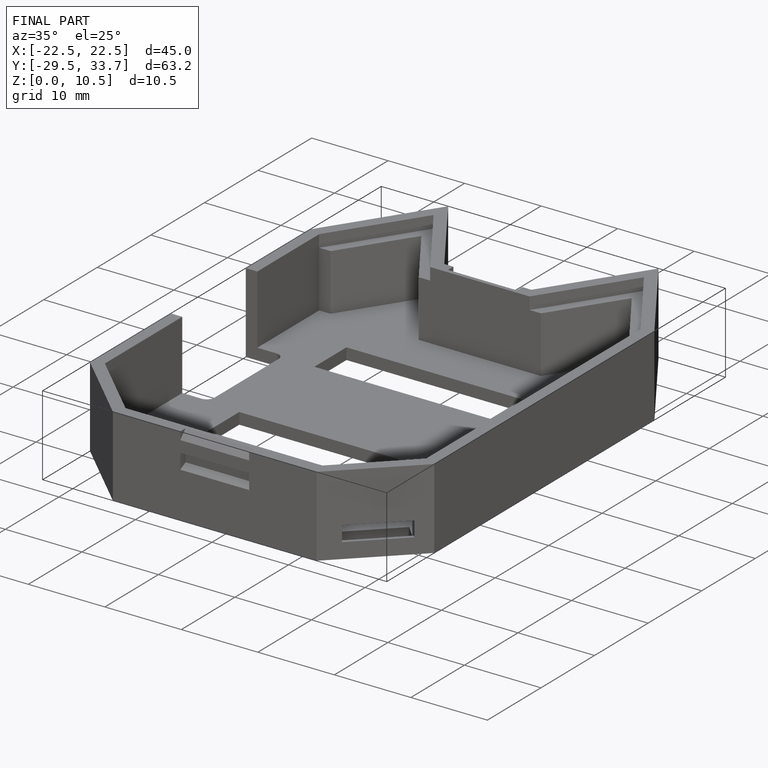
[diagram: finished part — iso view with bounding-box wireframe]
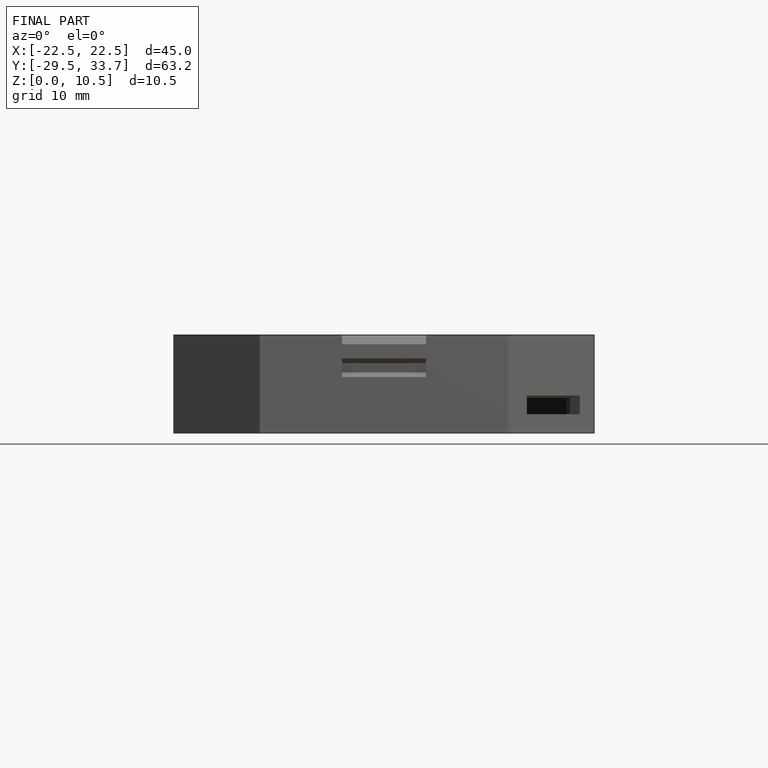
[diagram: finished part — front view with bounding-box wireframe]
